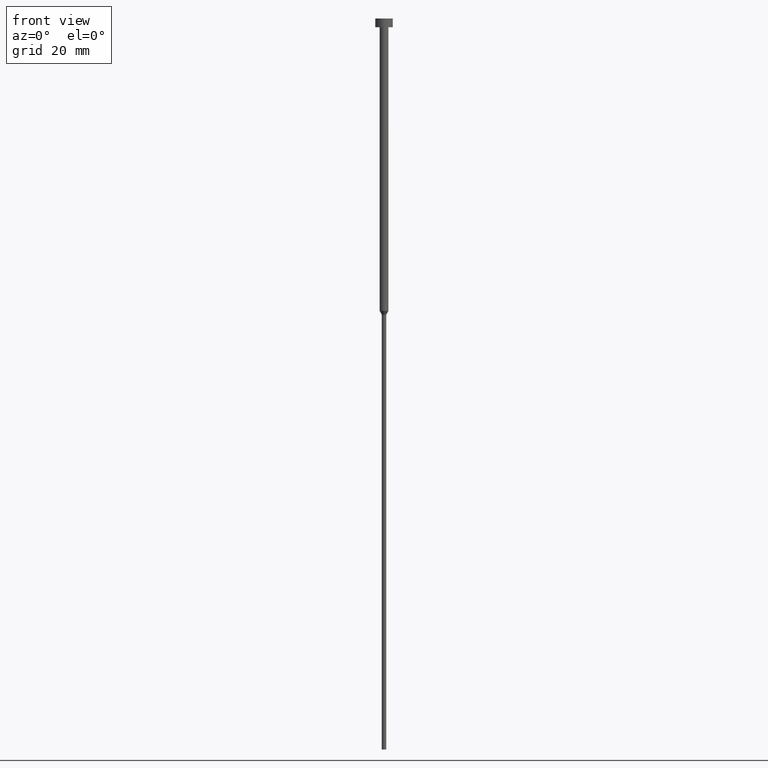
[diagram: clean part render]
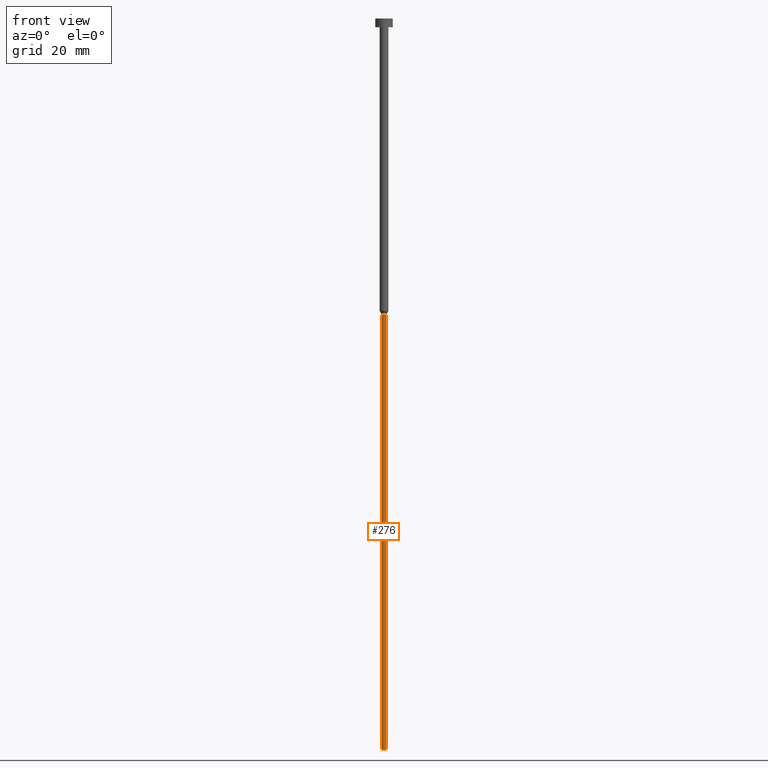
[diagram: same view with one face highlighted and labeled with its STEP entity id]
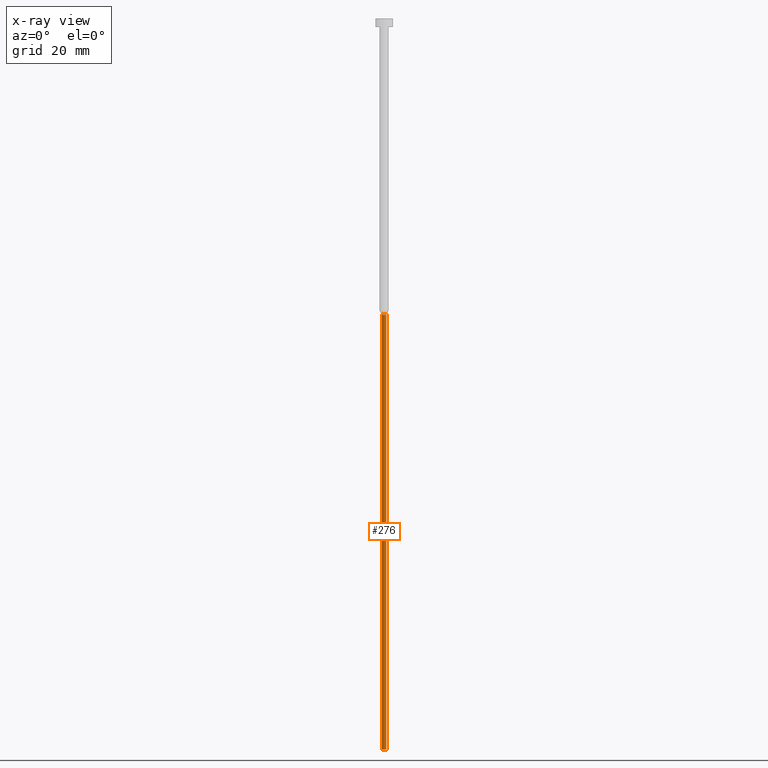
[diagram: x-ray of the same camera — body ghosted, the highlighted face saturated]
A machine part, front view. The second image highlights one B-rep face of the part: STEP entity #276.
The next image is the same camera in x-ray: the body ghosted, the highlighted face saturated — about 0% of this face is hidden behind the body in this view.
In plain terms, the highlighted cylindrical surface (edge-blend (fillet) strip) has radius 0.75 mm, axis along (-0, -0, 1).
Its self-contained STEP definition (entity closure, byte-faithful):
#2 = EDGE_CURVE ( 'NONE', #320, #339, #240, .T. ) ;
#5 = ORIENTED_EDGE ( 'NONE', *, *, #2, .T. ) ;
#12 = DIRECTION ( 'NONE',  ( 1.000000000000000000, 0.000000000000000000, 0.000000000000000000 ) ) ;
#53 = FACE_OUTER_BOUND ( 'NONE', #149, .T. ) ;
#55 = DIRECTION ( 'NONE',  ( -0.000000000000000000, -0.000000000000000000, 1.000000000000000000 ) ) ;
#56 = VERTEX_POINT ( 'NONE', #69 ) ;
#57 = CIRCLE ( 'NONE', #330, 0.7500000000000000000 ) ;
#66 = EDGE_CURVE ( 'NONE', #56, #122, #126, .T. ) ;
#69 = CARTESIAN_POINT ( 'NONE',  ( -0.7500000000000000000, 9.184850993605149670E-17, -250.0000000000000000 ) ) ;
#75 = DIRECTION ( 'NONE',  ( 1.000000000000000000, 0.000000000000000000, 0.000000000000000000 ) ) ;
#86 = EDGE_CURVE ( 'NONE', #122, #339, #278, .T. ) ;
#87 = AXIS2_PLACEMENT_3D ( 'NONE', #152, #257, #12 ) ;
#105 = DIRECTION ( 'NONE',  ( -0.000000000000000000, -0.000000000000000000, 1.000000000000000000 ) ) ;
#122 = VERTEX_POINT ( 'NONE', #216 ) ;
#126 = LINE ( 'NONE', #181, #201 ) ;
#139 = EDGE_CURVE ( 'NONE', #56, #320, #57, .T. ) ;
#149 = EDGE_LOOP ( 'NONE', ( #331, #265, #5, #175 ) ) ;
#152 = CARTESIAN_POINT ( 'NONE',  ( 0.000000000000000000, 0.000000000000000000, -101.2990381056766438 ) ) ;
#156 = CARTESIAN_POINT ( 'NONE',  ( 0.000000000000000000, 0.000000000000000000, 0.000000000000000000 ) ) ;
#173 = CARTESIAN_POINT ( 'NONE',  ( 0.7500000000000000000, 0.000000000000000000, -250.0000000000000000 ) ) ;
#174 = VECTOR ( 'NONE', #184, 1000.000000000000000 ) ;
#175 = ORIENTED_EDGE ( 'NONE', *, *, #86, .F. ) ;
#181 = CARTESIAN_POINT ( 'NONE',  ( -0.7500000000000000000, 9.184850993605149670E-17, 0.000000000000000000 ) ) ;
#182 = CYLINDRICAL_SURFACE ( 'NONE', #346, 0.7500000000000000000 ) ;
#184 = DIRECTION ( 'NONE',  ( -0.000000000000000000, -0.000000000000000000, 1.000000000000000000 ) ) ;
#200 = CARTESIAN_POINT ( 'NONE',  ( 0.7500000000000000000, 0.000000000000000000, -101.2990381056766438 ) ) ;
#201 = VECTOR ( 'NONE', #237, 1000.000000000000000 ) ;
#216 = CARTESIAN_POINT ( 'NONE',  ( -0.7500000000000000000, 9.184850993605149670E-17, -101.2990381056766438 ) ) ;
#237 = DIRECTION ( 'NONE',  ( -0.000000000000000000, -0.000000000000000000, 1.000000000000000000 ) ) ;
#240 = LINE ( 'NONE', #348, #174 ) ;
#250 = CARTESIAN_POINT ( 'NONE',  ( 0.000000000000000000, 0.000000000000000000, -250.0000000000000000 ) ) ;
#257 = DIRECTION ( 'NONE',  ( -0.000000000000000000, -0.000000000000000000, 1.000000000000000000 ) ) ;
#265 = ORIENTED_EDGE ( 'NONE', *, *, #139, .T. ) ;
#276 = ADVANCED_FACE ( 'NONE', ( #53 ), #182, .T. ) ;
#278 = CIRCLE ( 'NONE', #87, 0.7500000000000000000 ) ;
#320 = VERTEX_POINT ( 'NONE', #173 ) ;
#330 = AXIS2_PLACEMENT_3D ( 'NONE', #250, #105, #75 ) ;
#331 = ORIENTED_EDGE ( 'NONE', *, *, #66, .F. ) ;
#339 = VERTEX_POINT ( 'NONE', #200 ) ;
#340 = DIRECTION ( 'NONE',  ( 1.000000000000000000, 0.000000000000000000, 0.000000000000000000 ) ) ;
#346 = AXIS2_PLACEMENT_3D ( 'NONE', #156, #55, #340 ) ;
#348 = CARTESIAN_POINT ( 'NONE',  ( 0.7500000000000000000, 0.000000000000000000, 0.000000000000000000 ) ) ;